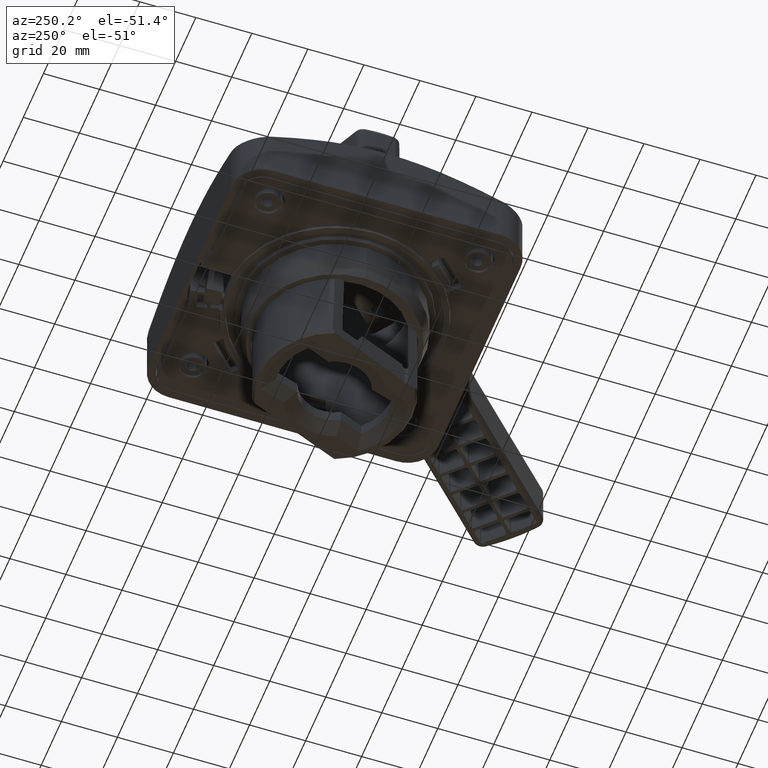
[diagram: clean part render]
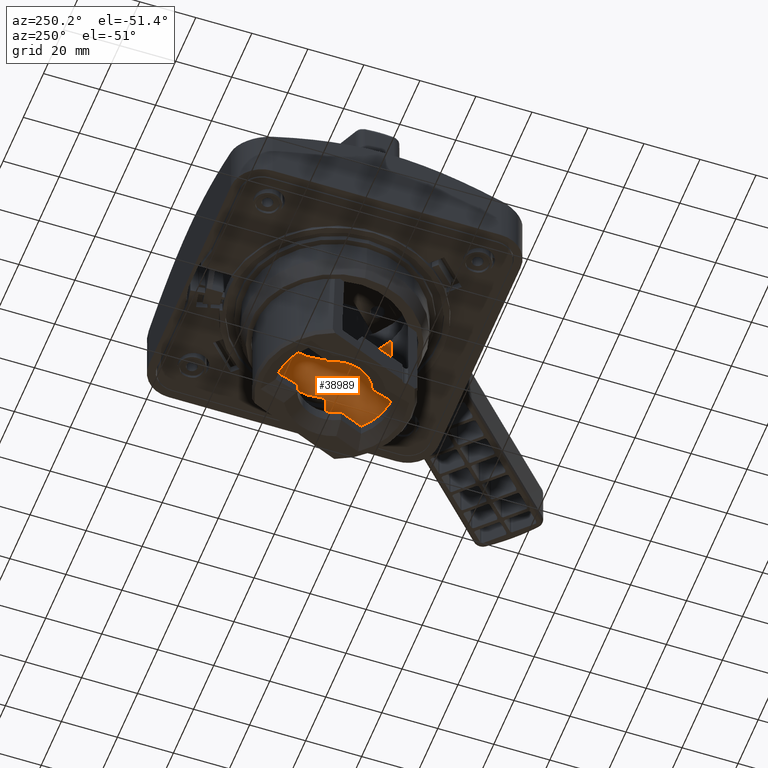
[diagram: same view with one face highlighted and labeled with its STEP entity id]
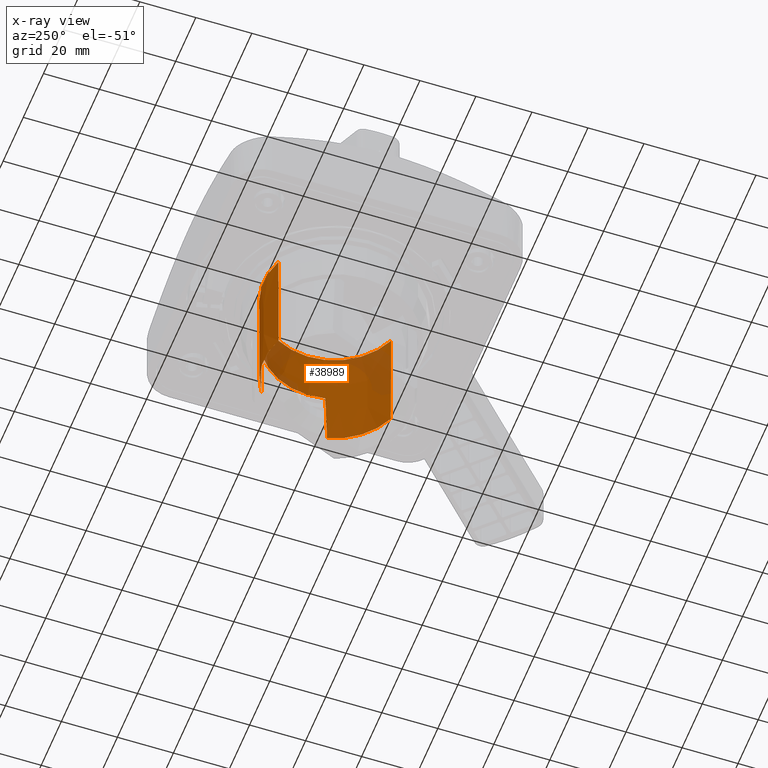
[diagram: x-ray of the same camera — body ghosted, the highlighted face saturated]
A machine part, auxiliary view. The second image highlights one B-rep face of the part: STEP entity #38989.
The next image is the same camera in x-ray: the body ghosted, the highlighted face saturated — about 22% of this face is hidden behind the body in this view.
In plain terms, the highlighted conical surface has half-angle 0.185 deg.
Its self-contained STEP definition (entity closure, byte-faithful):
#35574=CARTESIAN_POINT('',(0.E0,0.E0,-5.08E-1));
#35575=DIRECTION('',(0.E0,0.E0,-1.E0));
#35576=DIRECTION('',(5.505959291420E-1,8.347718986719E-1,0.E0));
#35577=AXIS2_PLACEMENT_3D('',#35574,#35575,#35576);
#35597=CARTESIAN_POINT('',(9.653618561305E-1,-2.393712785392E-1,
-1.349096773739E0));
#35598=CARTESIAN_POINT('',(9.680725479317E-1,-2.321971924858E-1,
-1.068728012028E0));
#35599=CARTESIAN_POINT('',(9.707274406347E-1,-2.248851510013E-1,
-7.883623236095E-1));
#35600=CARTESIAN_POINT('',(9.733212407167E-1,-2.174220665940E-1,
-5.080000000409E-1));
#35605=CARTESIAN_POINT('',(5.491146484804E-1,8.325260929824E-1,
-5.080000000421E-1));
#35606=CARTESIAN_POINT('',(5.420645307944E-1,8.360927816916E-1,
-7.883623236094E-1));
#35607=CARTESIAN_POINT('',(5.350753899852E-1,8.395083807143E-1,
-1.068728012026E0));
#35608=CARTESIAN_POINT('',(5.281419425588E-1,8.427859815941E-1,
-1.349096773737E0));
#35613=CARTESIAN_POINT('',(0.E0,0.E0,-1.349096773690E0));
#35614=DIRECTION('',(0.E0,0.E0,1.E0));
#35615=DIRECTION('',(5.310112821900E-1,8.473647492001E-1,0.E0));
#35616=AXIS2_PLACEMENT_3D('',#35613,#35614,#35615);
#35621=DIRECTION('',(-1.208402078672E-3,2.990900098578E-3,9.999947971270E-1));
#35622=VECTOR('',#35621,1.659105489051E0);
#35623=CARTESIAN_POINT('',(-3.725823924610E-1,9.221737813945E-1,
-1.349096773690E0));
#35624=LINE('',#35623,#35622);
#35628=DIRECTION('',(-1.208402078682E-3,2.990900098574E-3,-9.999947971270E-1));
#35629=VECTOR('',#35628,1.659105489051E0);
#35630=CARTESIAN_POINT('',(3.745872589827E-1,-9.271360001652E-1,
3.100000832460E-1));
#35631=LINE('',#35630,#35629);
#35635=CARTESIAN_POINT('',(0.E0,0.E0,-1.349096773690E0));
#35636=DIRECTION('',(0.E0,0.E0,1.E0));
#35637=DIRECTION('',(3.746065934159E-1,-9.271838545668E-1,0.E0));
#35638=AXIS2_PLACEMENT_3D('',#35635,#35636,#35637);
#35659=CARTESIAN_POINT('',(0.E0,0.E0,3.100000832460E-1));
#35660=DIRECTION('',(0.E0,0.E0,1.E0));
#35661=DIRECTION('',(3.746065934159E-1,-9.271838545668E-1,0.E0));
#35662=AXIS2_PLACEMENT_3D('',#35659,#35660,#35661);
#36853=CARTESIAN_POINT('',(9.653619996094E-1,-2.396222376755E-1,
-1.349193514101E0));
#38207=CARTESIAN_POINT('',(3.725823924609E-1,-9.221737813945E-1,
-1.349096773690E0));
#38208=VERTEX_POINT('',#38207);
#38209=VERTEX_POINT('',#36853);
#38226=VERTEX_POINT('',#35605);
#38227=VERTEX_POINT('',#35608);
#38233=CARTESIAN_POINT('',(9.733212407176E-1,-2.174220665942E-1,
-5.080000000226E-1));
#38234=VERTEX_POINT('',#38233);
#38251=CARTESIAN_POINT('',(-3.725823924609E-1,9.221737813945E-1,
-1.349096773690E0));
#38252=VERTEX_POINT('',#38251);
#38265=CARTESIAN_POINT('',(3.745872589827E-1,-9.271360001652E-1,
3.100000832460E-1));
#38266=VERTEX_POINT('',#38265);
#38267=CARTESIAN_POINT('',(-3.745872589827E-1,9.271360001652E-1,
3.100000832460E-1));
#38268=VERTEX_POINT('',#38267);
#38971=CARTESIAN_POINT('',(0.E0,0.E0,-5.195483452578E-1));
#38972=DIRECTION('',(0.E0,0.E0,1.E0));
#38973=DIRECTION('',(-3.746065934159E-1,9.271838545668E-1,0.E0));
#38974=AXIS2_PLACEMENT_3D('',#38971,#38972,#38973);
#38975=CONICAL_SURFACE('',#38974,9.972724246927E-1,1.848244541215E-1);
#38976=ORIENTED_EDGE('',*,*,#38656,.T.);
#38977=ORIENTED_EDGE('',*,*,#38963,.F.);
#38978=ORIENTED_EDGE('',*,*,#38642,.T.);
#38980=ORIENTED_EDGE('',*,*,#38979,.T.);
#38981=ORIENTED_EDGE('',*,*,#38893,.T.);
#38983=ORIENTED_EDGE('',*,*,#38982,.F.);
#38984=ORIENTED_EDGE('',*,*,#38889,.T.);
#38986=ORIENTED_EDGE('',*,*,#38985,.T.);
#38987=EDGE_LOOP('',(#38976,#38977,#38978,#38980,#38981,#38983,#38984,#38986));
#38988=FACE_OUTER_BOUND('',#38987,.F.);
#38989=ADVANCED_FACE('',(#38988),#38975,.F.);
#35578=CIRCLE('',#35577,9.973096774194E-1);
#35601=B_SPLINE_CURVE_WITH_KNOTS('',3,(#35597,#35598,#35599,#35600),
.UNSPECIFIED.,.F.,.F.,(4,4),(0.E0,1.E0),.UNSPECIFIED.);
#35609=B_SPLINE_CURVE_WITH_KNOTS('',3,(#35605,#35606,#35607,#35608),
.UNSPECIFIED.,.F.,.F.,(4,4),(0.E0,1.E0),.UNSPECIFIED.);
#35617=CIRCLE('',#35616,9.945964620204E-1);
#35639=CIRCLE('',#35638,9.945964620204E-1);
#35663=CIRCLE('',#35662,9.999483873653E-1);
#38642=EDGE_CURVE('',#38226,#38227,#35609,.T.);
#38656=EDGE_CURVE('',#38209,#38234,#35601,.T.);
#38889=EDGE_CURVE('',#38266,#38208,#35631,.T.);
#38893=EDGE_CURVE('',#38252,#38268,#35624,.T.);
#38963=EDGE_CURVE('',#38226,#38234,#35578,.T.);
#38979=EDGE_CURVE('',#38227,#38252,#35617,.T.);
#38982=EDGE_CURVE('',#38266,#38268,#35663,.T.);
#38985=EDGE_CURVE('',#38208,#38209,#35639,.T.);